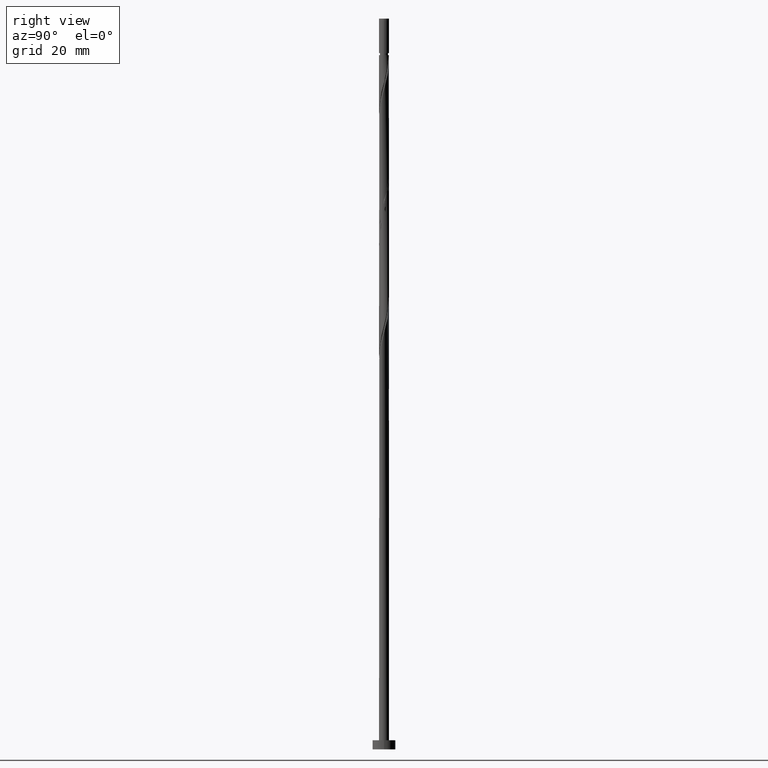
[diagram: clean part render]
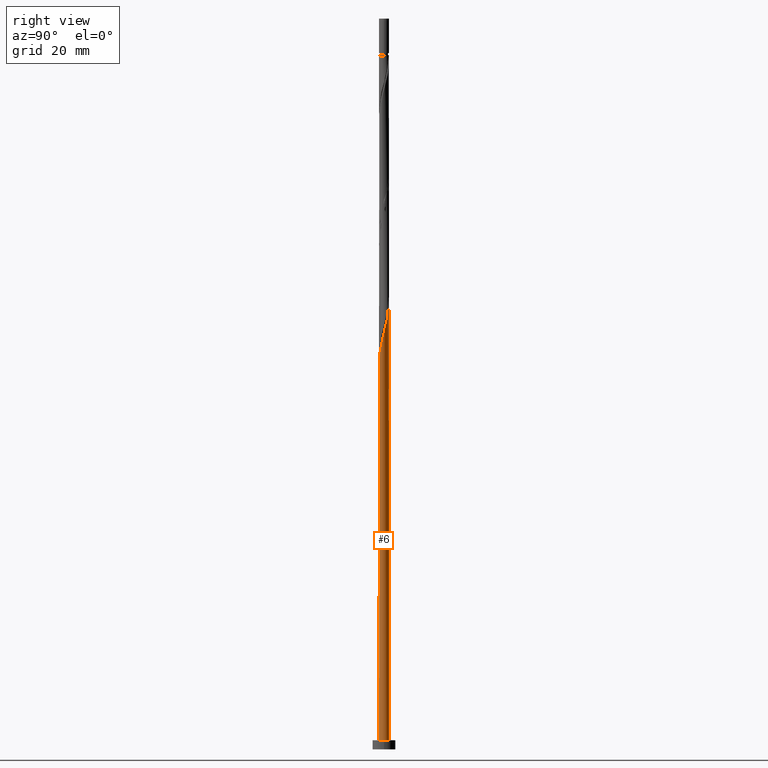
[diagram: same view with one face highlighted and labeled with its STEP entity id]
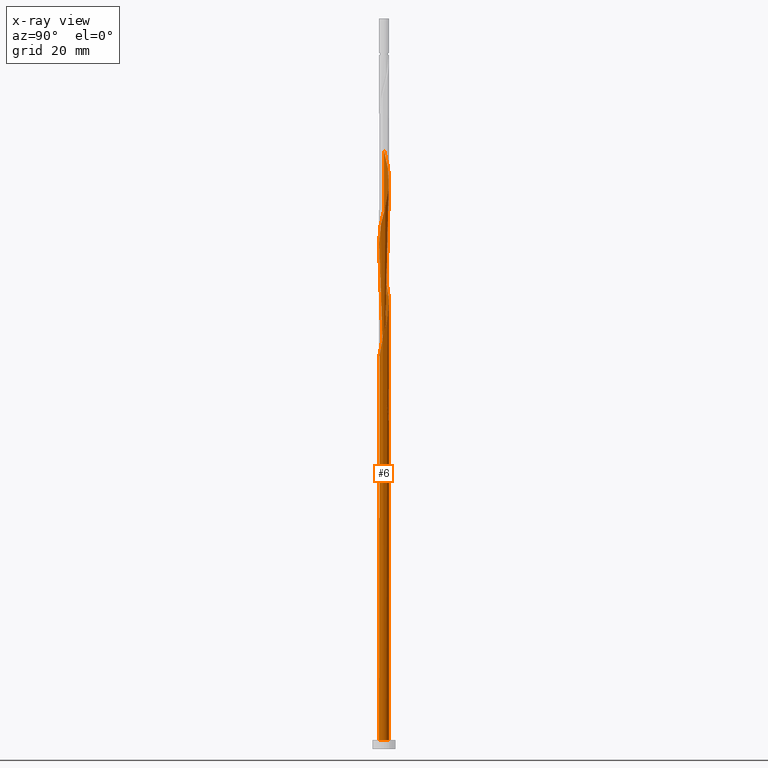
[diagram: x-ray of the same camera — body ghosted, the highlighted face saturated]
A machine part, right view. The second image highlights one B-rep face of the part: STEP entity #6.
The next image is the same camera in x-ray: the body ghosted, the highlighted face saturated — about 0% of this face is hidden behind the body in this view.
In plain terms, the highlighted cylindrical surface (bore or boss wall) has radius 1.1 mm, axis along (-0, -0, -1).
Its self-contained STEP definition (entity closure, byte-faithful):
#1 = ORIENTED_EDGE ( 'NONE', *, *, #1413, .T. ) ;
#2 = CARTESIAN_POINT ( 'NONE',  ( 1.098179839110718259, 0.06325378226446259911, 118.0660542847805914 ) ) ;
#6 = ADVANCED_FACE ( 'NONE', ( #290 ), #1224, .T. ) ;
#9 = CARTESIAN_POINT ( 'NONE',  ( -0.3986627279676455138, -1.025216089090197347, 109.5812057999321212 ) ) ;
#14 = DIRECTION ( 'NONE',  ( -0.000000000000000000, -0.000000000000000000, -1.000000000000000000 ) ) ;
#16 = CARTESIAN_POINT ( 'NONE',  ( -1.107274360013432490, 0.09464064150255076246, 104.1266603453866395 ) ) ;
#17 = DIRECTION ( 'NONE',  ( -1.000000000000000000, 0.000000000000000000, 0.000000000000000000 ) ) ;
#32 = CARTESIAN_POINT ( 'NONE',  ( 0.2188972361634575203, 1.078000000000001402, 72.00544822417452906 ) ) ;
#44 = ORIENTED_EDGE ( 'NONE', *, *, #1421, .F. ) ;
#51 = CARTESIAN_POINT ( 'NONE',  ( 0.000000000000000000, 0.000000000000000000, 160.0000000000000000 ) ) ;
#81 = EDGE_CURVE ( 'NONE', #1471, #1310, #1541, .T. ) ;
#109 = CARTESIAN_POINT ( 'NONE',  ( 0.5460665482332321963, 0.9678970421836270432, 95.64181186053815509 ) ) ;
#110 = VERTEX_POINT ( 'NONE', #1352 ) ;
#112 = CARTESIAN_POINT ( 'NONE',  ( -0.5460665482332326404, -0.9678970421836268212, 108.9751451938714837 ) ) ;
#117 = CARTESIAN_POINT ( 'NONE',  ( 0.5137380563175318882, -0.9726629475265768932, 113.2175694362957472 ) ) ;
#125 = CARTESIAN_POINT ( 'NONE',  ( 0.7966351246093590355, 0.7748456863181217846, 94.42969064841693694 ) ) ;
#133 = CARTESIAN_POINT ( 'NONE',  ( 1.035875189584575473, 0.3700845735816656323, 92.61150883023516656 ) ) ;
#154 = CARTESIAN_POINT ( 'NONE',  ( -1.100000000000001643, 2.542659519594335844E-16, 131.1559937448736548 ) ) ;
#155 =( BOUNDED_CURVE ( )  B_SPLINE_CURVE ( 2, ( #618, #174, #656, #636, #548, #519, #1322, #627, #1110, #752, #1079, #1226, #529, #985, #1103 ),
 .UNSPECIFIED., .F., .T. ) 
 B_SPLINE_CURVE_WITH_KNOTS ( ( 3, 2, 2, 2, 2, 2, 2, 3 ),
 ( 0.9295252162417514397, 0.9318181818181817677, 0.9431818181818182323, 0.9545454545454545858, 0.9659090909090909394, 0.9772727272727272929, 0.9886363636363636465, 1.000000000000000000 ),
 .UNSPECIFIED. ) 
 CURVE ( )  GEOMETRIC_REPRESENTATION_ITEM ( )  RATIONAL_B_SPLINE_CURVE ( ( 0.9061101570135807748, 0.9072237824201628831, 0.9090909090909403689, 0.8998376744372424962, 0.9090909090909403689, 0.8998376744372424962, 0.9090909090909403689, 0.8998376744372424962, 0.9090909090909403689, 0.8998376744372424962, 0.9090909090909403689, 0.8998376744372424962, 0.9090909090909403689, 0.8998376744372424962, 0.9090909090909403689 ) ) 
 REPRESENTATION_ITEM ( '' )  );
#164 = CARTESIAN_POINT ( 'NONE',  ( -0.5137380563175321102, 0.9726629475265764491, 126.5509027696291042 ) ) ;
#174 = CARTESIAN_POINT ( 'NONE',  ( -1.100000000000001421, 0.03165307917620723693, 79.39947136542384953 ) ) ;
#181 = CIRCLE ( 'NONE', #1382, 1.100000000000000089 ) ;
#204 = CARTESIAN_POINT ( 'NONE',  ( 1.107274360013432490, -0.09464064150255065144, 90.79332701205329670 ) ) ;
#223 = LINE ( 'NONE', #1407, #1375 ) ;
#226 = CARTESIAN_POINT ( 'NONE',  ( -0.09367733623259114073, -1.096003903586282746, 110.7933270120533109 ) ) ;
#230 = CARTESIAN_POINT ( 'NONE',  ( -1.100000000000001643, 1.398462735776883580E-15, 79.52156937014208893 ) ) ;
#236 = CARTESIAN_POINT ( 'NONE',  ( 0.8803318733882242730, -0.6782544891587160008, 88.36908458781090303 ) ) ;
#244 = CARTESIAN_POINT ( 'NONE',  ( 0.6535858755450257851, -0.8987985662289482702, 87.15696337568968488 ) ) ;
#252 = CARTESIAN_POINT ( 'NONE',  ( 0.3738902370900385463, -1.046527328824204961, 85.94484216356845252 ) ) ;
#253 = CARTESIAN_POINT ( 'NONE',  ( -1.100000000000001643, -1.282547375324789796E-15, 77.82266041154029779 ) ) ;
#254 = CIRCLE ( 'NONE', #1123, 1.100000000000000089 ) ;
#260 = CARTESIAN_POINT ( 'NONE',  ( 1.100000000000000089, 0.000000000000000000, 2.000000000000000000 ) ) ;
#268 = ORIENTED_EDGE ( 'NONE', *, *, #1421, .T. ) ;
#270 = CARTESIAN_POINT ( 'NONE',  ( 0.000000000000000000, 0.000000000000000000, 72.00544822417452906 ) ) ;
#290 = FACE_OUTER_BOUND ( 'NONE', #506, .T. ) ;
#302 = CARTESIAN_POINT ( 'NONE',  ( -1.035758618384751362, 0.4027622671116080633, 129.5812057999320643 ) ) ;
#340 = DIRECTION ( 'NONE',  ( -0.000000000000000000, -0.000000000000000000, -1.000000000000000000 ) ) ;
#356 = CARTESIAN_POINT ( 'NONE',  ( -0.7966351246093585914, -0.7748456863181224508, 107.7630239817502797 ) ) ;
#364 = CARTESIAN_POINT ( 'NONE',  ( 0.8896500927852530882, 0.6469333137249887455, 120.4902967090230135 ) ) ;
#369 = CARTESIAN_POINT ( 'NONE',  ( -0.2188972361634569652, 1.078000000000001402, 98.67211489084120046 ) ) ;
#377 = CARTESIAN_POINT ( 'NONE',  ( 0.09367733623259123787, 1.096003903586282746, 97.45999367872001073 ) ) ;
#386 = CARTESIAN_POINT ( 'NONE',  ( 0.9826650609611466969, 0.5190209411318552624, 93.21756943629574721 ) ) ;
#393 = VERTEX_POINT ( 'NONE', #230 ) ;
#409 = DIRECTION ( 'NONE',  ( 1.000000000000000000, 0.000000000000000000, 0.000000000000000000 ) ) ;
#410 = CARTESIAN_POINT ( 'NONE',  ( -1.100000000000001643, -1.282547375324789796E-15, 77.82266041154029779 ) ) ;
#413 = CARTESIAN_POINT ( 'NONE',  ( -0.2188972361634569652, 1.078000000000001402, 72.00544822417452906 ) ) ;
#426 = CARTESIAN_POINT ( 'NONE',  ( 0.2512589077020579986, 1.082535135996767428, 123.5205997393260446 ) ) ;
#432 = CARTESIAN_POINT ( 'NONE',  ( -1.035875189584575473, -0.3700845735816658544, 79.27817549690182375 ) ) ;
#476 = CARTESIAN_POINT ( 'NONE',  ( -0.6535858755450257851, 0.8987985662289482702, 100.4902967090230135 ) ) ;
#480 = CARTESIAN_POINT ( 'NONE',  ( -1.089085318208004471, -0.2211482060314759746, 105.3387815575078861 ) ) ;
#488 = CARTESIAN_POINT ( 'NONE',  ( 0.2512589077020579986, 1.082535135996767428, 96.85393307265937324 ) ) ;
#492 = EDGE_CURVE ( 'NONE', #547, #393, #223, .T. ) ;
#494 = CARTESIAN_POINT ( 'NONE',  ( 0.9580452458864876508, -0.5405083781351621708, 115.6418118605381977 ) ) ;
#500 = CARTESIAN_POINT ( 'NONE',  ( -0.8896500927852526441, -0.6469333137249891896, 107.1569633756896991 ) ) ;
#506 = EDGE_LOOP ( 'NONE', ( #1340, #577, #268, #993, #1, #44, #599, #1409, #1003 ) ) ;
#519 = CARTESIAN_POINT ( 'NONE',  ( -0.9826650609611464748, 0.5190209411318559285, 77.45999367871996810 ) ) ;
#520 = LINE ( 'NONE', #1111, #754 ) ;
#529 = CARTESIAN_POINT ( 'NONE',  ( -0.09367733623259116849, 1.096003903586282524, 73.21756943629573300 ) ) ;
#530 = DIRECTION ( 'NONE',  ( 0.000000000000000000, -0.000000000000000000, -1.000000000000000000 ) ) ;
#547 = VERTEX_POINT ( 'NONE', #1064 ) ;
#548 = CARTESIAN_POINT ( 'NONE',  ( -1.035875189584575917, 0.3700845735816657989, 78.06605428478059139 ) ) ;
#577 = ORIENTED_EDGE ( 'NONE', *, *, #772, .F. ) ;
#592 = CARTESIAN_POINT ( 'NONE',  ( -1.098179839110718259, -0.06325378226446273788, 104.7327209514472486 ) ) ;
#596 = CARTESIAN_POINT ( 'NONE',  ( 0.6535858755450257851, -0.8987985662289482702, 113.8236300423563421 ) ) ;
#599 = ORIENTED_EDGE ( 'NONE', *, *, #81, .F. ) ;
#600 = CARTESIAN_POINT ( 'NONE',  ( 0.8803318733882242730, -0.6782544891587160008, 115.0357512544775460 ) ) ;
#606 = CARTESIAN_POINT ( 'NONE',  ( 0.5137380563175318882, -0.9726629475265768932, 86.55090276962907581 ) ) ;
#612 = CARTESIAN_POINT ( 'NONE',  ( 0.8896500927852530882, 0.6469333137249887455, 93.82363004235635628 ) ) ;
#618 = CARTESIAN_POINT ( 'NONE',  ( -1.100000000000001643, 1.398462735776883580E-15, 79.52156937014208893 ) ) ;
#627 = CARTESIAN_POINT ( 'NONE',  ( -0.7966351246093584804, 0.7748456863181226728, 76.24787246659874995 ) ) ;
#634 = CARTESIAN_POINT ( 'NONE',  ( -1.071516489199091815, 0.2487014543070792949, 76.85393307265935903 ) ) ;
#636 = CARTESIAN_POINT ( 'NONE',  ( -1.089085318208004693, 0.2211482060314761411, 78.67211489084121467 ) ) ;
#644 = CARTESIAN_POINT ( 'NONE',  ( 0.09367733623259123787, 1.096003903586282746, 124.1266603453866395 ) ) ;
#648 = CARTESIAN_POINT ( 'NONE',  ( -1.089085318208004471, -0.2211482060314759746, 78.67211489084121467 ) ) ;
#656 = CARTESIAN_POINT ( 'NONE',  ( -1.098179839110718481, 0.06325378226446283503, 79.27817549690179533 ) ) ;
#687 = CARTESIAN_POINT ( 'NONE',  ( 1.098179839110718259, 0.06325378226446259911, 91.39938761811390577 ) ) ;
#711 = CARTESIAN_POINT ( 'NONE',  ( 0.2188972361634571040, -1.078000000000001402, 112.0054482241745291 ) ) ;
#716 = CARTESIAN_POINT ( 'NONE',  ( 0.9580452458864876508, -0.5405083781351621708, 88.97514519387151211 ) ) ;
#722 = CARTESIAN_POINT ( 'NONE',  ( 1.035758618384751584, -0.4027622671116077857, 89.58120579993212118 ) ) ;
#727 = CARTESIAN_POINT ( 'NONE',  ( -0.06390423523687560614, 1.109472671175798286, 98.06605428478059139 ) ) ;
#741 = CARTESIAN_POINT ( 'NONE',  ( -0.9580452458864877618, 0.5405083781351619487, 75.64181186053815509 ) ) ;
#742 = CARTESIAN_POINT ( 'NONE',  ( 0.6713508364212954493, 0.8713713642508748025, 121.7024179211442174 ) ) ;
#752 = CARTESIAN_POINT ( 'NONE',  ( -0.5460665482332324183, 0.9678970421836269322, 75.03575125447757443 ) ) ;
#753 = DIRECTION ( 'NONE',  ( 1.000000000000000000, 0.000000000000000000, 0.000000000000000000 ) ) ;
#754 = VECTOR ( 'NONE', #1236, 1000.000000000000000 ) ;
#762 = CARTESIAN_POINT ( 'NONE',  ( 0.000000000000000000, 0.000000000000000000, 2.000000000000000000 ) ) ;
#772 = EDGE_CURVE ( 'NONE', #1310, #547, #946, .T. ) ;
#774 = CARTESIAN_POINT ( 'NONE',  ( -0.5460665482332326404, -0.9678970421836268212, 82.30847852720482649 ) ) ;
#814 = CARTESIAN_POINT ( 'NONE',  ( -0.3738902370900387129, 1.046527328824204739, 99.27817549690179533 ) ) ;
#821 = CARTESIAN_POINT ( 'NONE',  ( 0.7966351246093590355, 0.7748456863181217846, 121.0963573150836083 ) ) ;
#828 = CARTESIAN_POINT ( 'NONE',  ( -0.8803318733882242730, 0.6782544891587157787, 101.7024179211442032 ) ) ;
#829 = DIRECTION ( 'NONE',  ( -1.000000000000000000, 0.000000000000000000, 0.000000000000000000 ) ) ;
#831 = CARTESIAN_POINT ( 'NONE',  ( -1.071516489199091815, 0.2487014543070792949, 103.5205997393260304 ) ) ;
#838 = CARTESIAN_POINT ( 'NONE',  ( -0.9580452458864877618, 0.5405083781351619487, 102.3084785272048549 ) ) ;
#842 = CARTESIAN_POINT ( 'NONE',  ( -0.6535858755450257851, 0.8987985662289482702, 73.82363004235634207 ) ) ;
#852 = EDGE_CURVE ( 'NONE', #393, #1040, #155, .T. ) ;
#853 = DIRECTION ( 'NONE',  ( 0.000000000000000000, 0.000000000000000000, 1.000000000000000000 ) ) ;
#856 = VERTEX_POINT ( 'NONE', #260 ) ;
#857 = CARTESIAN_POINT ( 'NONE',  ( -0.8803318733882242730, 0.6782544891587157787, 128.3690845878109030 ) ) ;
#860 = CIRCLE ( 'NONE', #1117, 1.100000000000000089 ) ;
#863 = CARTESIAN_POINT ( 'NONE',  ( -0.06390423523687560614, 1.109472671175798286, 124.7327209514472486 ) ) ;
#926 = CARTESIAN_POINT ( 'NONE',  ( -0.2512589077020578876, -1.082535135996767428, 110.1872664059927303 ) ) ;
#936 = CARTESIAN_POINT ( 'NONE',  ( 0.9826650609611466969, 0.5190209411318552624, 119.8842361029623760 ) ) ;
#943 = CARTESIAN_POINT ( 'NONE',  ( 0.06390423523687575880, -1.109472671175797842, 111.3993876181139200 ) ) ;
#946 =( BOUNDED_CURVE ( )  B_SPLINE_CURVE ( 2, ( #1007, #1497, #1359, #648, #432, #1259, #1116, #998, #1488, #774, #1249, #1069, #1311, #1448, #1306, #252, #606, #244, #1438, #236, #716, #722, #1187, #204, #687, #1536, #133, #386, #612, #125, #1166, #109, #1179, #488, #377, #727, #369, #814, #1074, #476, #1298, #828, #838, #1195, #831, #16, #592, #480, #1419, #1050, #500, #356, #951, #112, #9, #926, #226, #943, #711, #1175, #117, #596, #1433, #600, #494, #1056, #1425, #1059, #2, #1318, #1540, #936, #364, #821, #742, #1493, #1455, #426, #644, #863, #1004, #1363, #164, #1356, #994, #857, #1344, #302, #1235, #1243, #154 ),
 .UNSPECIFIED., .F., .T. ) 
 B_SPLINE_CURVE_WITH_KNOTS ( ( 3, 2, 2, 2, 2, 2, 2, 2, 2, 2, 2, 2, 2, 2, 2, 2, 2, 2, 2, 2, 2, 2, 2, 2, 2, 2, 2, 2, 2, 2, 2, 2, 2, 2, 2, 2, 2, 2, 2, 2, 2, 2, 2, 2, 2, 3 ),
 ( 0.05452521624175129394, 0.05681818181818176772, 0.06818181818181823228, 0.07954545454545458583, 0.09090909090909093937, 0.1022727272727272929, 0.1136363636363636465, 0.1250000000000000000, 0.1363636363636363535, 0.1477272727272727071, 0.1590909090909090606, 0.1704545454545454142, 0.1818181818181817677, 0.1931818181818182323, 0.2045454545454545858, 0.2159090909090909394, 0.2272727272727272929, 0.2386363636363636465, 0.2500000000000000000, 0.2613636363636363535, 0.2727272727272727071, 0.2840909090909090606, 0.2954545454545454142, 0.3068181818181817677, 0.3181818181818182323, 0.3295454545454545858, 0.3409090909090909394, 0.3522727272727272929, 0.3636363636363636465, 0.3750000000000000000, 0.3863636363636363535, 0.3977272727272727071, 0.4090909090909090606, 0.4204545454545454142, 0.4318181818181817677, 0.4431818181818182323, 0.4545454545454545858, 0.4659090909090909394, 0.4772727272727272929, 0.4886363636363636465, 0.5000000000000000000, 0.5113636363636363535, 0.5227272727272727071, 0.5340909090909091717, 0.5454545454545454142, 0.5545252162417515507 ),
 .UNSPECIFIED. ) 
 CURVE ( )  GEOMETRIC_REPRESENTATION_ITEM ( )  RATIONAL_B_SPLINE_CURVE ( ( 0.9061101570135797756, 0.9072237824201618839, 0.9090909090909394807, 0.8998376744372417191, 0.9090909090909394807, 0.8998376744372417191, 0.9090909090909394807, 0.8998376744372417191, 0.9090909090909394807, 0.8998376744372417191, 0.9090909090909394807, 0.8998376744372417191, 0.9090909090909394807, 0.8998376744372417191, 0.9090909090909394807, 0.8998376744372417191, 0.9090909090909394807, 0.8998376744372417191, 0.9090909090909394807, 0.8998376744372417191, 0.9090909090909394807, 0.8998376744372417191, 0.9090909090909394807, 0.8998376744372417191, 0.9090909090909394807, 0.8998376744372417191, 0.9090909090909394807, 0.8998376744372417191, 0.9090909090909394807, 0.8998376744372417191, 0.9090909090909394807, 0.8998376744372417191, 0.9090909090909394807, 0.8998376744372417191, 0.9090909090909394807, 0.8998376744372417191, 0.9090909090909394807, 0.8998376744372417191, 0.9090909090909394807, 0.8998376744372417191, 0.9090909090909394807, 0.8998376744372417191, 0.9090909090909394807, 0.8998376744372417191, 0.9090909090909394807, 0.8998376744372417191, 0.9090909090909394807, 0.8998376744372417191, 0.9090909090909394807, 0.8998376744372417191, 0.9090909090909394807, 0.8998376744372417191, 0.9090909090909394807, 0.8998376744372417191, 0.9090909090909394807, 0.8998376744372417191, 0.9090909090909394807, 0.8998376744372417191, 0.9090909090909394807, 0.8998376744372417191, 0.9090909090909394807, 0.8998376744372417191, 0.9090909090909394807, 0.8998376744372417191, 0.9090909090909394807, 0.8998376744372417191, 0.9090909090909394807, 0.8998376744372417191, 0.9090909090909394807, 0.8998376744372417191, 0.9090909090909394807, 0.8998376744372417191, 0.9090909090909394807, 0.8998376744372417191, 0.9090909090909394807, 0.8998376744372417191, 0.9090909090909394807, 0.8998376744372417191, 0.9090909090909394807, 0.8998376744372417191, 0.9090909090909394807, 0.8998376744372417191, 0.9090909090909394807, 0.8998376744372417191, 0.9090909090909394807, 0.8998376744372417191, 0.9090909090909394807, 0.8998376744372417191, 0.9090909090909394807, 0.9017048011080190939, 0.9061101570135798866 ) ) 
 REPRESENTATION_ITEM ( '' )  );
#951 = CARTESIAN_POINT ( 'NONE',  ( -0.6713508364212955604, -0.8713713642508745805, 108.3690845878108746 ) ) ;
#958 = CARTESIAN_POINT ( 'NONE',  ( -0.5137380563175321102, 0.9726629475265764491, 73.21756943629574721 ) ) ;
#969 = CARTESIAN_POINT ( 'NONE',  ( -0.3738902370900387129, 1.046527328824204739, 72.61150883023516656 ) ) ;
#984 = CARTESIAN_POINT ( 'NONE',  ( -1.100000000000001643, 0.1259818201236349022, 77.33670045856898412 ) ) ;
#985 = CARTESIAN_POINT ( 'NONE',  ( 0.06390423523687577267, 1.109472671175797842, 72.61150883023512392 ) ) ;
#986 = DIRECTION ( 'NONE',  ( 0.000000000000000000, 0.000000000000000000, 1.000000000000000000 ) ) ;
#993 = ORIENTED_EDGE ( 'NONE', *, *, #1072, .T. ) ;
#994 = CARTESIAN_POINT ( 'NONE',  ( -0.7669588744666248070, 0.7885265276938320245, 127.7630239817502940 ) ) ;
#998 = CARTESIAN_POINT ( 'NONE',  ( -0.7966351246093585914, -0.7748456863181224508, 81.09635731508360834 ) ) ;
#1003 = ORIENTED_EDGE ( 'NONE', *, *, #852, .F. ) ;
#1004 = CARTESIAN_POINT ( 'NONE',  ( -0.2188972361634569652, 1.078000000000001402, 125.3387815575078577 ) ) ;
#1007 = CARTESIAN_POINT ( 'NONE',  ( -1.100000000000001643, -1.282547375324789796E-15, 77.82266041154029779 ) ) ;
#1040 = VERTEX_POINT ( 'NONE', #32 ) ;
#1050 = CARTESIAN_POINT ( 'NONE',  ( -0.9826650609611464748, -0.5190209411318557065, 106.5509027696290758 ) ) ;
#1056 = CARTESIAN_POINT ( 'NONE',  ( 1.035758618384751584, -0.4027622671116077857, 116.2478724665987642 ) ) ;
#1059 = CARTESIAN_POINT ( 'NONE',  ( 1.107274360013432490, -0.09464064150255065144, 117.4599936787199965 ) ) ;
#1064 = CARTESIAN_POINT ( 'NONE',  ( -1.100000000000001643, 2.542659519594335844E-16, 131.1559937448736548 ) ) ;
#1069 = CARTESIAN_POINT ( 'NONE',  ( -0.2512589077020578876, -1.082535135996767428, 83.52059973932604464 ) ) ;
#1072 = EDGE_CURVE ( 'NONE', #110, #856, #860, .T. ) ;
#1074 = CARTESIAN_POINT ( 'NONE',  ( -0.5137380563175321102, 0.9726629475265764491, 99.88423610296241861 ) ) ;
#1079 = CARTESIAN_POINT ( 'NONE',  ( -0.3986627279676452917, 1.025216089090197569, 74.42969064841695115 ) ) ;
#1086 = CARTESIAN_POINT ( 'NONE',  ( -0.2188972361634569652, 1.078000000000001402, 72.00544822417452906 ) ) ;
#1103 = CARTESIAN_POINT ( 'NONE',  ( 0.2188972361634575203, 1.078000000000001402, 72.00544822417452906 ) ) ;
#1110 = CARTESIAN_POINT ( 'NONE',  ( -0.6713508364212955604, 0.8713713642508748025, 75.64181186053814088 ) ) ;
#1111 = CARTESIAN_POINT ( 'NONE',  ( -1.100000000000000089, 0.000000000000000000, 160.0000000000000000 ) ) ;
#1116 = CARTESIAN_POINT ( 'NONE',  ( -0.8896500927852526441, -0.6469333137249891896, 80.49029670902302769 ) ) ;
#1117 = AXIS2_PLACEMENT_3D ( 'NONE', #1209, #853, #409 ) ;
#1123 = AXIS2_PLACEMENT_3D ( 'NONE', #762, #986, #753 ) ;
#1166 = CARTESIAN_POINT ( 'NONE',  ( 0.6713508364212954493, 0.8713713642508748025, 95.03575125447754601 ) ) ;
#1175 = CARTESIAN_POINT ( 'NONE',  ( 0.3738902370900385463, -1.046527328824204961, 112.6115088302350955 ) ) ;
#1179 = CARTESIAN_POINT ( 'NONE',  ( 0.3986627279676449587, 1.025216089090197347, 96.24787246659877837 ) ) ;
#1187 = CARTESIAN_POINT ( 'NONE',  ( 1.071516489199091815, -0.2487014543070792394, 90.18726640599270183 ) ) ;
#1195 = CARTESIAN_POINT ( 'NONE',  ( -1.035758618384751362, 0.4027622671116080633, 102.9145391332654214 ) ) ;
#1209 = CARTESIAN_POINT ( 'NONE',  ( 0.000000000000000000, 0.000000000000000000, 2.000000000000000000 ) ) ;
#1211 = CARTESIAN_POINT ( 'NONE',  ( -1.035758618384751362, 0.4027622671116080633, 76.24787246659874995 ) ) ;
#1224 = CYLINDRICAL_SURFACE ( 'NONE', #1392, 1.100000000000000089 ) ;
#1226 = CARTESIAN_POINT ( 'NONE',  ( -0.2512589077020579986, 1.082535135996767428, 73.82363004235632786 ) ) ;
#1235 = CARTESIAN_POINT ( 'NONE',  ( -1.071516489199091815, 0.2487014543070792949, 130.1872664059927160 ) ) ;
#1236 = DIRECTION ( 'NONE',  ( -0.000000000000000000, -0.000000000000000000, -1.000000000000000000 ) ) ;
#1243 = CARTESIAN_POINT ( 'NONE',  ( -1.100000000000002309, 0.1259818201236326263, 130.6700337919023127 ) ) ;
#1249 = CARTESIAN_POINT ( 'NONE',  ( -0.3986627279676455138, -1.025216089090197347, 82.91453913326543557 ) ) ;
#1259 = CARTESIAN_POINT ( 'NONE',  ( -0.9826650609611464748, -0.5190209411318557065, 79.88423610296239019 ) ) ;
#1298 = CARTESIAN_POINT ( 'NONE',  ( -0.7669588744666248070, 0.7885265276938320245, 101.0963573150836083 ) ) ;
#1306 = CARTESIAN_POINT ( 'NONE',  ( 0.2188972361634571040, -1.078000000000001402, 85.33878155750787187 ) ) ;
#1310 = VERTEX_POINT ( 'NONE', #253 ) ;
#1311 = CARTESIAN_POINT ( 'NONE',  ( -0.09367733623259114073, -1.096003903586282746, 84.12666034538665372 ) ) ;
#1318 = CARTESIAN_POINT ( 'NONE',  ( 1.089085318208004471, 0.2211482060314758358, 118.6721148908411863 ) ) ;
#1322 = CARTESIAN_POINT ( 'NONE',  ( -0.8896500927852526441, 0.6469333137249889676, 76.85393307265935903 ) ) ;
#1328 = CARTESIAN_POINT ( 'NONE',  ( -0.8803318733882242730, 0.6782544891587157787, 75.03575125447756022 ) ) ;
#1340 = ORIENTED_EDGE ( 'NONE', *, *, #492, .F. ) ;
#1344 = CARTESIAN_POINT ( 'NONE',  ( -0.9580452458864877618, 0.5405083781351619487, 128.9751451938714979 ) ) ;
#1352 = CARTESIAN_POINT ( 'NONE',  ( -1.100000000000000089, 0.000000000000000000, 2.000000000000000000 ) ) ;
#1356 = CARTESIAN_POINT ( 'NONE',  ( -0.6535858755450257851, 0.8987985662289482702, 127.1569633756896849 ) ) ;
#1359 = CARTESIAN_POINT ( 'NONE',  ( -1.098179839110718259, -0.06325378226446273788, 78.06605428478056297 ) ) ;
#1363 = CARTESIAN_POINT ( 'NONE',  ( -0.3738902370900387129, 1.046527328824204739, 125.9448421635684667 ) ) ;
#1373 = EDGE_CURVE ( 'NONE', #1471, #1040, #181, .T. ) ;
#1375 = VECTOR ( 'NONE', #340, 1000.000000000000000 ) ;
#1382 = AXIS2_PLACEMENT_3D ( 'NONE', #270, #530, #17 ) ;
#1392 = AXIS2_PLACEMENT_3D ( 'NONE', #51, #14, #829 ) ;
#1407 = CARTESIAN_POINT ( 'NONE',  ( -1.100000000000000089, 0.000000000000000000, 160.0000000000000000 ) ) ;
#1409 = ORIENTED_EDGE ( 'NONE', *, *, #1373, .T. ) ;
#1413 = EDGE_CURVE ( 'NONE', #856, #110, #254, .T. ) ;
#1419 = CARTESIAN_POINT ( 'NONE',  ( -1.035875189584575473, -0.3700845735816658544, 105.9448421635684952 ) ) ;
#1421 = EDGE_CURVE ( 'NONE', #1310, #110, #520, .T. ) ;
#1425 = CARTESIAN_POINT ( 'NONE',  ( 1.071516489199091815, -0.2487014543070792394, 116.8539330726593732 ) ) ;
#1433 = CARTESIAN_POINT ( 'NONE',  ( 0.7669588744666248070, -0.7885265276938320245, 114.4296906484169511 ) ) ;
#1438 = CARTESIAN_POINT ( 'NONE',  ( 0.7669588744666248070, -0.7885265276938320245, 87.76302398175029396 ) ) ;
#1448 = CARTESIAN_POINT ( 'NONE',  ( 0.06390423523687575880, -1.109472671175797842, 84.73272095144727700 ) ) ;
#1453 = CARTESIAN_POINT ( 'NONE',  ( -0.7669588744666248070, 0.7885265276938320245, 74.42969064841695115 ) ) ;
#1455 = CARTESIAN_POINT ( 'NONE',  ( 0.3986627279676449587, 1.025216089090197347, 122.9145391332654640 ) ) ;
#1471 = VERTEX_POINT ( 'NONE', #413 ) ;
#1488 = CARTESIAN_POINT ( 'NONE',  ( -0.6713508364212955604, -0.8713713642508745805, 81.70241792114423163 ) ) ;
#1493 = CARTESIAN_POINT ( 'NONE',  ( 0.5460665482332321963, 0.9678970421836270432, 122.3084785272048407 ) ) ;
#1497 = CARTESIAN_POINT ( 'NONE',  ( -1.100000000000001865, -0.03165307917620512057, 77.94475841625852297 ) ) ;
#1536 = CARTESIAN_POINT ( 'NONE',  ( 1.089085318208004471, 0.2211482060314758358, 92.00544822417451485 ) ) ;
#1540 = CARTESIAN_POINT ( 'NONE',  ( 1.035875189584575473, 0.3700845735816656323, 119.2781754969018095 ) ) ;
#1541 =( BOUNDED_CURVE ( )  B_SPLINE_CURVE ( 2, ( #1086, #969, #958, #842, #1453, #1328, #741, #1211, #634, #984, #410 ),
 .UNSPECIFIED., .F., .T. ) 
 B_SPLINE_CURVE_WITH_KNOTS ( ( 3, 2, 2, 2, 2, 3 ),
 ( 0.000000000000000000, 0.01136363636363635354, 0.02272727272727270709, 0.03409090909090906063, 0.04545454545454541417, 0.05452521624175129394 ),
 .UNSPECIFIED. ) 
 CURVE ( )  GEOMETRIC_REPRESENTATION_ITEM ( )  RATIONAL_B_SPLINE_CURVE ( ( 0.9090909090909394807, 0.8998376744372417191, 0.9090909090909394807, 0.8998376744372417191, 0.9090909090909394807, 0.8998376744372417191, 0.9090909090909394807, 0.8998376744372417191, 0.9090909090909394807, 0.9017048011080193159, 0.9061101570135797756 ) ) 
 REPRESENTATION_ITEM ( '' )  );